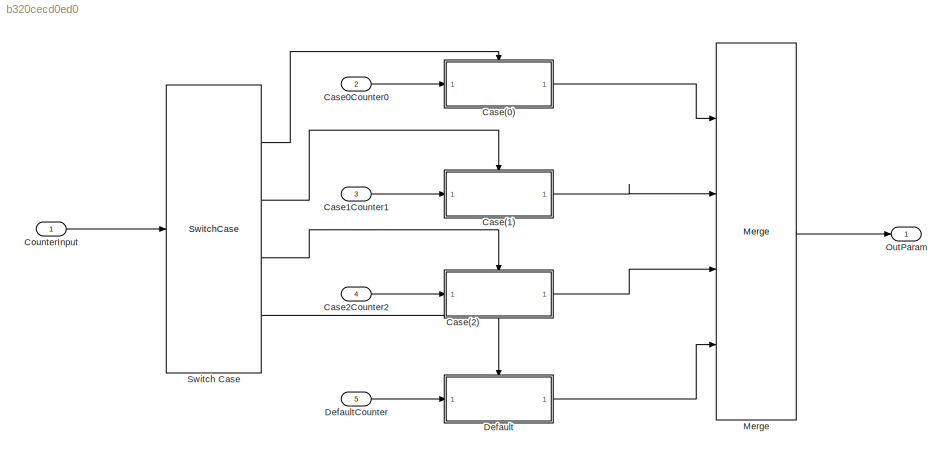
MODEL slx_b320cecd0ed0
KIND model
CONFIG AbsTol = auto
CONFIG EnableMultiTasking = off
CONFIG FixedStep = auto
CONFIG MaxStep = auto
CONFIG MinStep = auto
CONFIG RelTol = 1e-3
CONFIG SampleTimeConstraint = Unconstrained
CONFIG Solver = FixedStepDiscrete
CONFIG SolverName = FixedStepDiscrete
CONFIG StartTime = 0.0
CONFIG StopTime = 10.0
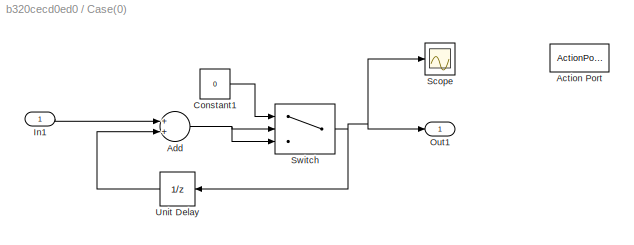
BLOCK [SubSystem] Case(0)
  Ports = [1, 1, 0, 0, 0, 0, 0, 1]
  RequestExecContextInheritance = off
  TreatAsAtomicUnit = on
  Variant = off
BLOCK [ActionPort] Case(0)/Action Port
  ActionType = case
BLOCK [Sum] Case(0)/Add
  InputSameDT = off
  OutDataTypeStr = Inherit: Inherit via internal rule
  Ports = [2, 1]
  SaturateOnIntegerOverflow = off
BLOCK [Constant] Case(0)/Constant1
  Value = 0
BLOCK [Inport] Case(0)/In1
  IconDisplay = Port number
BLOCK [Outport] Case(0)/Out1
  IconDisplay = Port number
BLOCK [Scope] Case(0)/Scope
  NumInputPorts = 1
  Ports = [1]
  ScopeSpecificationString = Simulink.scopes.TimeScopeBlockCfg('CurrentConfiguration', extmgr.ConfigurationSet(extmgr.Configuration('Core','General UI',true),extmgr.Configuration('Core','Source UI',true),extmgr.Configuration('Sources','WiredSimulink',true,'DataLoggingVariableName','ScopeData1'),extmgr.Configuration('Visuals','Time Domain',true,'SerializedDisplays',{struct('MinYLimReal','-1.125','MaxYLimReal','10.125','YLabelR...<+1357ch>
BLOCK [Switch] Case(0)/Switch
  InputSameDT = off
  SaturateOnIntegerOverflow = off
  Threshold = 10
BLOCK [UnitDelay] Case(0)/Unit Delay
  InputProcessing = Elements as channels (sample based)
  SampleTime = -1
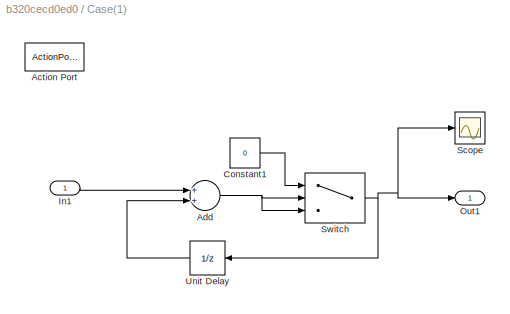
BLOCK [SubSystem] Case(1)
  Ports = [1, 1, 0, 0, 0, 0, 0, 1]
  RequestExecContextInheritance = off
  TreatAsAtomicUnit = on
  Variant = off
BLOCK [ActionPort] Case(1)/Action Port
  ActionType = case
BLOCK [Sum] Case(1)/Add
  InputSameDT = off
  OutDataTypeStr = Inherit: Inherit via internal rule
  Ports = [2, 1]
  SaturateOnIntegerOverflow = off
BLOCK [Constant] Case(1)/Constant1
  Value = 0
BLOCK [Inport] Case(1)/In1
  IconDisplay = Port number
BLOCK [Outport] Case(1)/Out1
  IconDisplay = Port number
BLOCK [Scope] Case(1)/Scope
  NumInputPorts = 1
  Ports = [1]
  ScopeSpecificationString = Simulink.scopes.TimeScopeBlockCfg('CurrentConfiguration', extmgr.ConfigurationSet(extmgr.Configuration('Core','General UI',true),extmgr.Configuration('Core','Source UI',true),extmgr.Configuration('Sources','WiredSimulink',true,'DataLoggingVariableName','ScopeData2'),extmgr.Configuration('Visuals','Time Domain',true,'SerializedDisplays',{struct('MinYLimReal','-1.125','MaxYLimReal','10.125','YLabelR...<+1357ch>
BLOCK [Switch] Case(1)/Switch
  Criteria = u2 ~= 0
  InputSameDT = off
  SaturateOnIntegerOverflow = off
  Threshold = 5
BLOCK [UnitDelay] Case(1)/Unit Delay
  InputProcessing = Elements as channels (sample based)
  SampleTime = -1
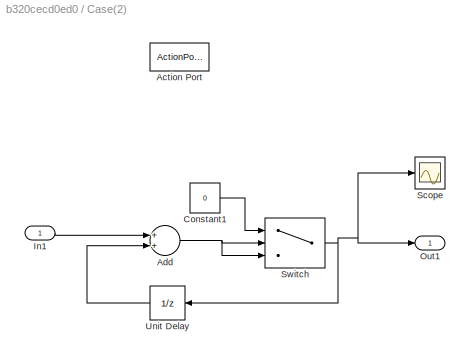
BLOCK [SubSystem] Case(2)
  Ports = [1, 1, 0, 0, 0, 0, 0, 1]
  RequestExecContextInheritance = off
  TreatAsAtomicUnit = on
  Variant = off
BLOCK [ActionPort] Case(2)/Action Port
  ActionType = case
BLOCK [Sum] Case(2)/Add
  InputSameDT = off
  OutDataTypeStr = Inherit: Inherit via internal rule
  Ports = [2, 1]
  SaturateOnIntegerOverflow = off
BLOCK [Constant] Case(2)/Constant1
  Value = 0
BLOCK [Inport] Case(2)/In1
  IconDisplay = Port number
BLOCK [Outport] Case(2)/Out1
  IconDisplay = Port number
BLOCK [Scope] Case(2)/Scope
  NumInputPorts = 1
  Ports = [1]
  ScopeSpecificationString = Simulink.scopes.TimeScopeBlockCfg('CurrentConfiguration', extmgr.ConfigurationSet(extmgr.Configuration('Core','General UI',true),extmgr.Configuration('Core','Source UI',true),extmgr.Configuration('Sources','WiredSimulink',true,'DataLoggingVariableName','ScopeData3'),extmgr.Configuration('Visuals','Time Domain',true,'SerializedDisplays',{struct('MinYLimReal','-1.125','MaxYLimReal','10.125','YLabelR...<+1357ch>
BLOCK [Switch] Case(2)/Switch
  Criteria = u2 > Threshold
  InputSameDT = off
  SaturateOnIntegerOverflow = off
  Threshold = 10
BLOCK [UnitDelay] Case(2)/Unit Delay
  InputProcessing = Elements as channels (sample based)
  SampleTime = -1
BLOCK [Inport] Case0Counter0
  IconDisplay = Port number
  Port = 2
BLOCK [Inport] Case1Counter1
  IconDisplay = Port number
  Port = 3
BLOCK [Inport] Case2Counter2
  IconDisplay = Port number
  Port = 4
BLOCK [Inport] CounterInput
  IconDisplay = Port number
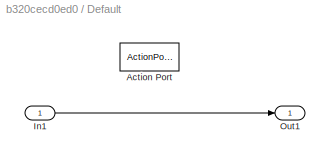
BLOCK [SubSystem] Default
  Ports = [1, 1, 0, 0, 0, 0, 0, 1]
  RequestExecContextInheritance = off
  TreatAsAtomicUnit = on
  Variant = off
BLOCK [ActionPort] Default/Action Port
  ActionType = default
BLOCK [Inport] Default/In1
  IconDisplay = Port number
BLOCK [Outport] Default/Out1
  IconDisplay = Port number
BLOCK [Inport] DefaultCounter
  IconDisplay = Port number
  Port = 5
BLOCK [Merge] Merge
  Inputs = 4
  Ports = [4, 1]
BLOCK [Outport] OutParam
  IconDisplay = Port number
BLOCK [SwitchCase] Switch Case
  CaseConditions = {1,2,[3,4]}
  Ports = [1, 4]
NET Case(0)/Add:1 -> Case(0)/Switch:2, Case(0)/Switch:3
LINE Case(0)/Constant1:1 -> Case(0)/Switch:1
LINE Case(0)/In1:1 -> Case(0)/Add:1
NET Case(0)/Switch:1 -> Case(0)/Out1:1, Case(0)/Scope:1, Case(0)/Unit Delay:1
LINE Case(0)/Unit Delay:1 -> Case(0)/Add:2
LINE Case(0):1 -> Merge:1
NET Case(1)/Add:1 -> Case(1)/Switch:2, Case(1)/Switch:3
LINE Case(1)/Constant1:1 -> Case(1)/Switch:1
LINE Case(1)/In1:1 -> Case(1)/Add:1
NET Case(1)/Switch:1 -> Case(1)/Out1:1, Case(1)/Scope:1, Case(1)/Unit Delay:1
LINE Case(1)/Unit Delay:1 -> Case(1)/Add:2
LINE Case(1):1 -> Merge:2
NET Case(2)/Add:1 -> Case(2)/Switch:2, Case(2)/Switch:3
LINE Case(2)/Constant1:1 -> Case(2)/Switch:1
LINE Case(2)/In1:1 -> Case(2)/Add:1
NET Case(2)/Switch:1 -> Case(2)/Out1:1, Case(2)/Scope:1, Case(2)/Unit Delay:1
LINE Case(2)/Unit Delay:1 -> Case(2)/Add:2
LINE Case(2):1 -> Merge:3
LINE Case0Counter0:1 -> Case(0):1
LINE Case1Counter1:1 -> Case(1):1
LINE Case2Counter2:1 -> Case(2):1
LINE CounterInput:1 -> Switch Case:1
LINE Default/In1:1 -> Default/Out1:1
LINE Default:1 -> Merge:4
LINE DefaultCounter:1 -> Default:1
LINE Merge:1 -> OutParam:1
LINE Switch Case:1 -> Case(0):ifaction
LINE Switch Case:2 -> Case(1):ifaction
LINE Switch Case:3 -> Case(2):ifaction
LINE Switch Case:4 -> Default:ifaction
note: NET lines group one-source signal fan-out (src -> all destinations, sorted); 1:1 wires keep LINE
